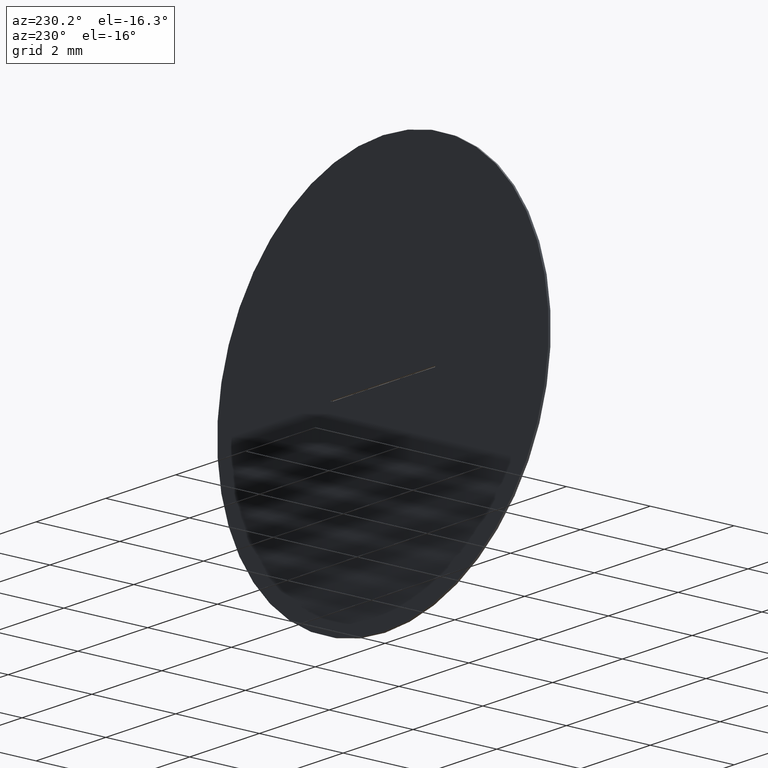
[diagram: clean part render]
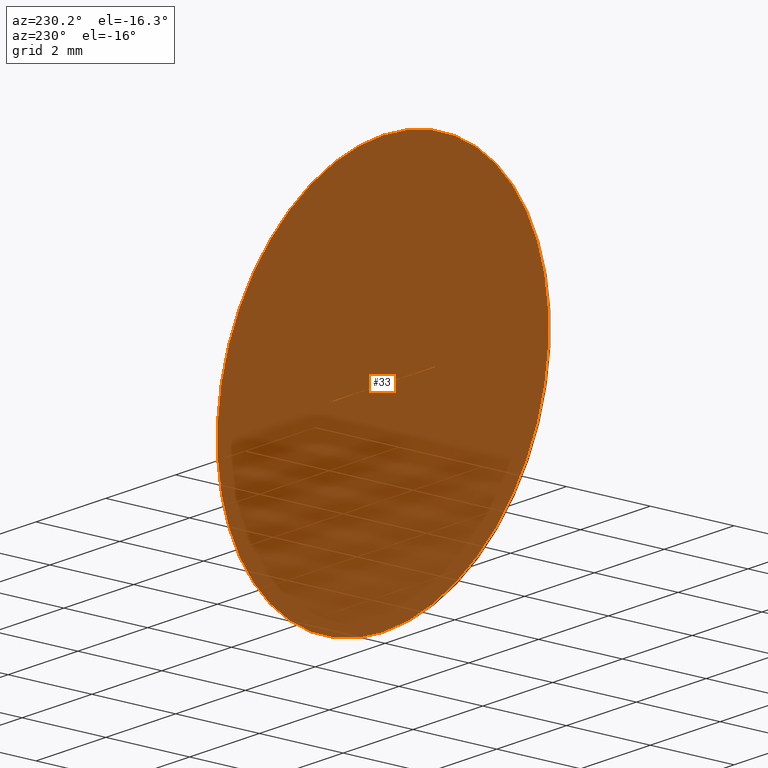
[diagram: same view with one face highlighted and labeled with its STEP entity id]
A machine part, auxiliary view. The second image highlights one B-rep face of the part: STEP entity #33.
In plain terms, the highlighted planar face has unit normal (0, 1, 0).
Its self-contained STEP definition (entity closure, byte-faithful):
#8 = EDGE_CURVE ( 'NONE', #302, #34, #288, .T. ) ;
#12 = ORIENTED_EDGE ( 'NONE', *, *, #8, .F. ) ;
#15 = DIRECTION ( 'NONE',  ( -1.000000000000000000, -0.000000000000000000, -0.000000000000000000 ) ) ;
#21 = VECTOR ( 'NONE', #163, 1000.000000000000000 ) ;
#23 = CARTESIAN_POINT ( 'NONE',  ( 0.000000000000000000, 0.05000000000000000278, 0.000000000000000000 ) ) ;
#24 = CARTESIAN_POINT ( 'NONE',  ( 1.500000000000000444, 0.05000000000000000278, -0.01249999999999999896 ) ) ;
#33 = ADVANCED_FACE ( 'NONE', ( #240, #246 ), #68, .T. ) ;
#34 = VERTEX_POINT ( 'NONE', #40 ) ;
#40 = CARTESIAN_POINT ( 'NONE',  ( -1.499999999999999556, 0.05000000000000000278, -0.01249999999999999896 ) ) ;
#45 = CARTESIAN_POINT ( 'NONE',  ( -1.499999999999999556, 0.05000000000000000278, -0.01249999999999999896 ) ) ;
#53 = ORIENTED_EDGE ( 'NONE', *, *, #301, .F. ) ;
#54 = CARTESIAN_POINT ( 'NONE',  ( -1.499999999999999556, 0.05000000000000000278, 0.01250000000000000243 ) ) ;
#56 = VECTOR ( 'NONE', #15, 1000.000000000000000 ) ;
#58 = EDGE_LOOP ( 'NONE', ( #201, #155 ) ) ;
#63 = DIRECTION ( 'NONE',  ( 0.000000000000000000, 1.000000000000000000, 0.000000000000000000 ) ) ;
#68 = PLANE ( 'NONE',  #210 ) ;
#75 = LINE ( 'NONE', #54, #119 ) ;
#80 = ORIENTED_EDGE ( 'NONE', *, *, #122, .F. ) ;
#84 = VERTEX_POINT ( 'NONE', #310 ) ;
#86 = EDGE_CURVE ( 'NONE', #255, #302, #269, .T. ) ;
#94 = CIRCLE ( 'NONE', #229, 4.750000000000000000 ) ;
#103 = EDGE_LOOP ( 'NONE', ( #12, #181, #53, #80 ) ) ;
#119 = VECTOR ( 'NONE', #278, 1000.000000000000000 ) ;
#122 = EDGE_CURVE ( 'NONE', #34, #84, #271, .T. ) ;
#130 = CIRCLE ( 'NONE', #184, 4.750000000000000000 ) ;
#132 = EDGE_CURVE ( 'NONE', #286, #183, #94, .T. ) ;
#134 = CARTESIAN_POINT ( 'NONE',  ( -1.499999999999999556, 0.05000000000000000278, -0.01249999999999999896 ) ) ;
#147 = VECTOR ( 'NONE', #238, 1000.000000000000000 ) ;
#148 = DIRECTION ( 'NONE',  ( 0.000000000000000000, 0.000000000000000000, 1.000000000000000000 ) ) ;
#155 = ORIENTED_EDGE ( 'NONE', *, *, #262, .T. ) ;
#159 = DIRECTION ( 'NONE',  ( 0.000000000000000000, 0.000000000000000000, 1.000000000000000000 ) ) ;
#163 = DIRECTION ( 'NONE',  ( 0.000000000000000000, 0.000000000000000000, 1.000000000000000000 ) ) ;
#181 = ORIENTED_EDGE ( 'NONE', *, *, #86, .F. ) ;
#183 = VERTEX_POINT ( 'NONE', #254 ) ;
#184 = AXIS2_PLACEMENT_3D ( 'NONE', #197, #277, #148 ) ;
#185 = CARTESIAN_POINT ( 'NONE',  ( 1.500000000000000444, 0.05000000000000000278, -0.01249999999999999896 ) ) ;
#197 = CARTESIAN_POINT ( 'NONE',  ( 0.000000000000000000, 0.05000000000000000278, 0.000000000000000000 ) ) ;
#199 = CARTESIAN_POINT ( 'NONE',  ( 0.000000000000000000, 0.05000000000000000278, -4.750000000000000000 ) ) ;
#201 = ORIENTED_EDGE ( 'NONE', *, *, #132, .T. ) ;
#210 = AXIS2_PLACEMENT_3D ( 'NONE', #290, #63, #267 ) ;
#218 = DIRECTION ( 'NONE',  ( 0.000000000000000000, 1.000000000000000000, 0.000000000000000000 ) ) ;
#229 = AXIS2_PLACEMENT_3D ( 'NONE', #23, #218, #159 ) ;
#238 = DIRECTION ( 'NONE',  ( -0.000000000000000000, -0.000000000000000000, -1.000000000000000000 ) ) ;
#240 = FACE_OUTER_BOUND ( 'NONE', #58, .T. ) ;
#246 = FACE_BOUND ( 'NONE', #103, .T. ) ;
#254 = CARTESIAN_POINT ( 'NONE',  ( 5.817072295949927426E-16, 0.05000000000000000278, 4.750000000000000000 ) ) ;
#255 = VERTEX_POINT ( 'NONE', #279 ) ;
#262 = EDGE_CURVE ( 'NONE', #183, #286, #130, .T. ) ;
#267 = DIRECTION ( 'NONE',  ( 0.000000000000000000, -0.000000000000000000, 1.000000000000000000 ) ) ;
#269 = LINE ( 'NONE', #185, #147 ) ;
#271 = LINE ( 'NONE', #45, #21 ) ;
#277 = DIRECTION ( 'NONE',  ( 0.000000000000000000, 1.000000000000000000, 0.000000000000000000 ) ) ;
#278 = DIRECTION ( 'NONE',  ( 1.000000000000000000, 0.000000000000000000, 0.000000000000000000 ) ) ;
#279 = CARTESIAN_POINT ( 'NONE',  ( 1.500000000000000444, 0.05000000000000000278, 0.01250000000000000243 ) ) ;
#286 = VERTEX_POINT ( 'NONE', #199 ) ;
#288 = LINE ( 'NONE', #134, #56 ) ;
#290 = CARTESIAN_POINT ( 'NONE',  ( 0.000000000000000000, 0.05000000000000000278, 0.000000000000000000 ) ) ;
#301 = EDGE_CURVE ( 'NONE', #84, #255, #75, .T. ) ;
#302 = VERTEX_POINT ( 'NONE', #24 ) ;
#310 = CARTESIAN_POINT ( 'NONE',  ( -1.499999999999999556, 0.05000000000000000278, 0.01250000000000000243 ) ) ;